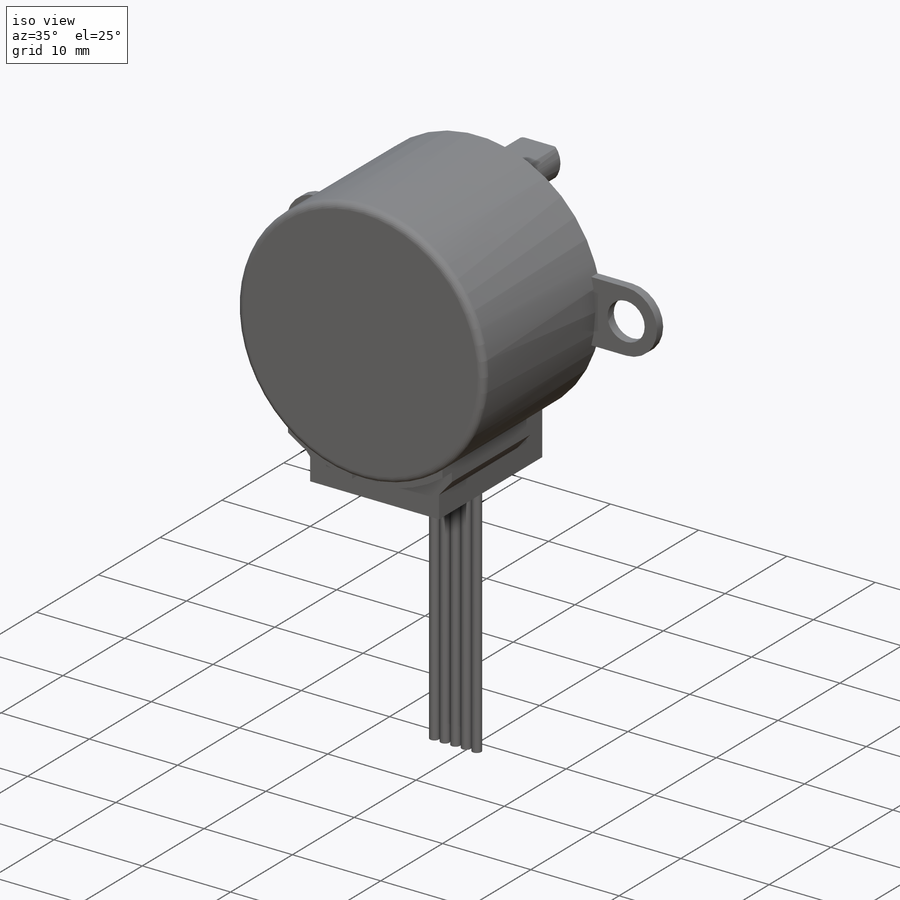
[diagram: iso view]
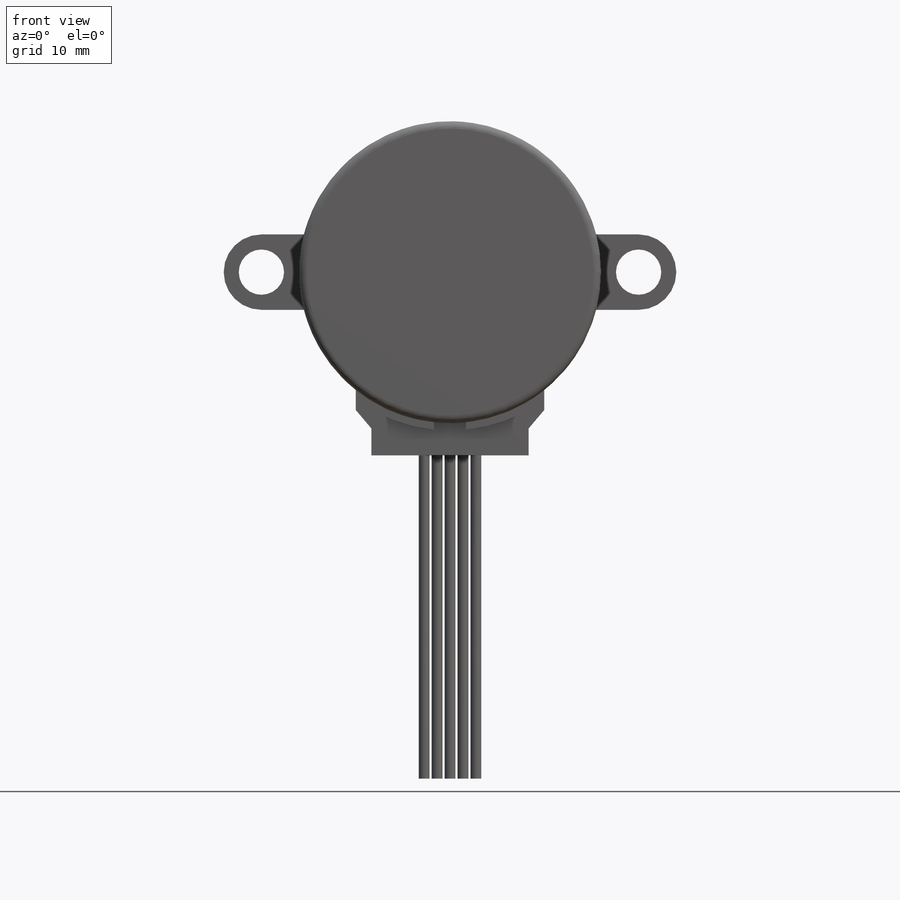
[diagram: front view]
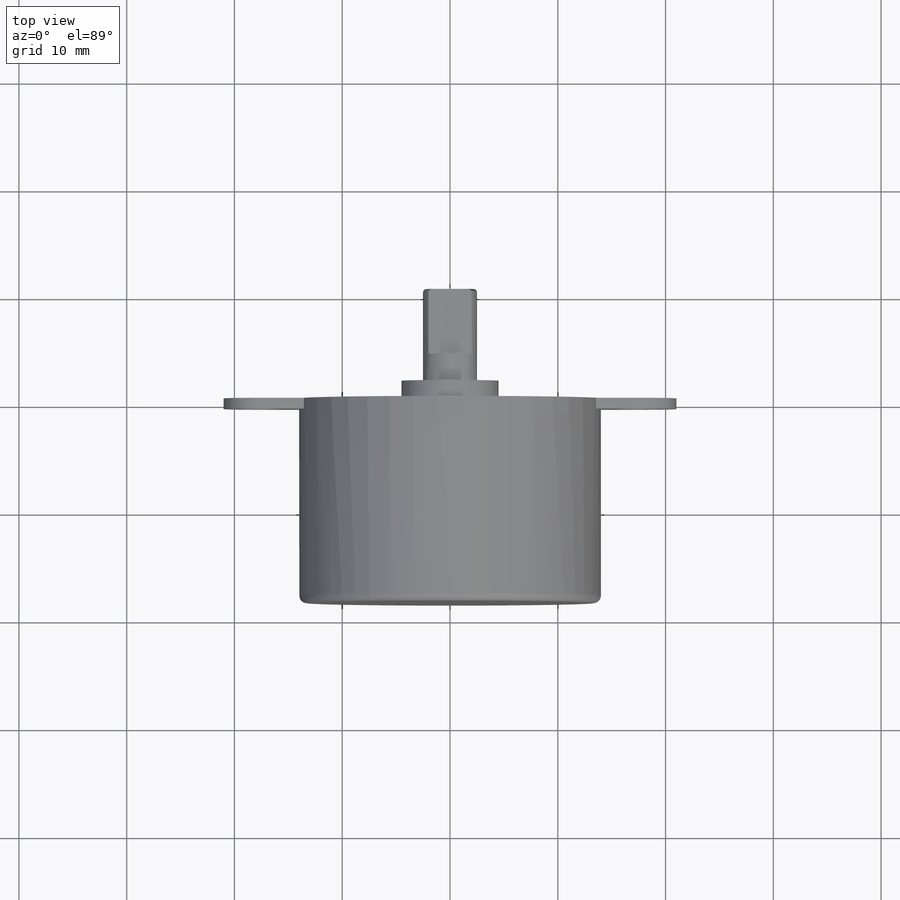
[diagram: top view]
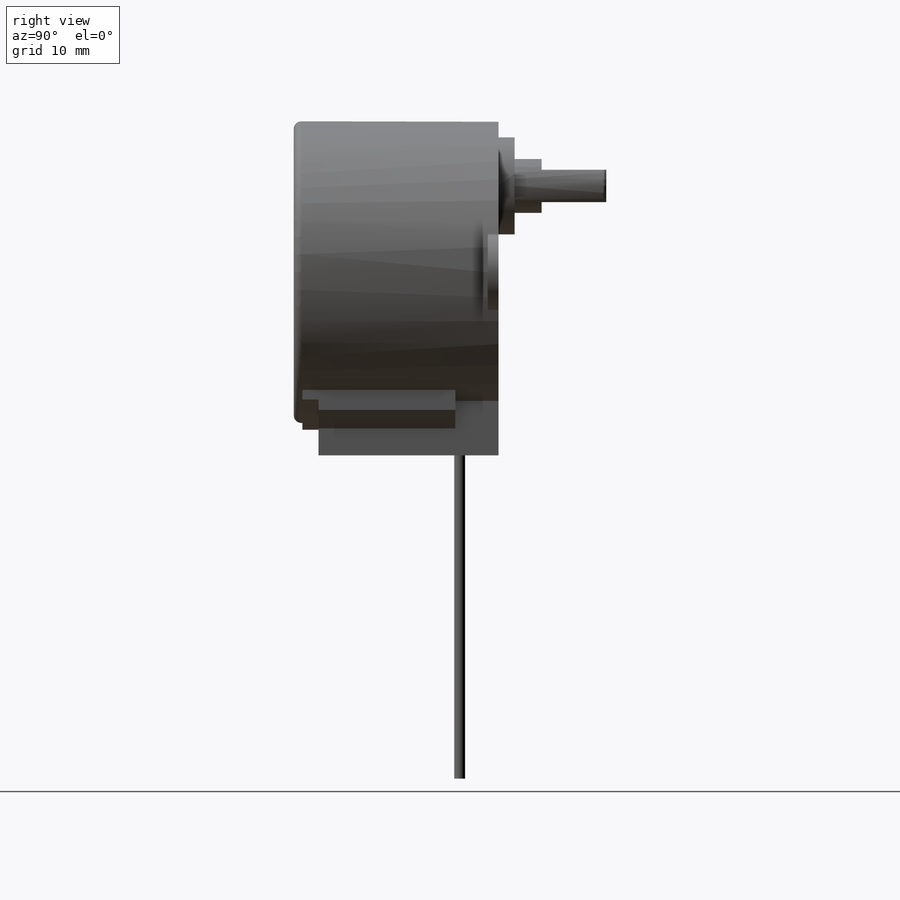
[diagram: right view]
SOLIDWORKS PART (.sldprt)
format: sldprt  version: not decoded by parser v0  size: 380,928 bytes
history: native  units: mm
features: sketch x11, extrude x9, plane x3, fillet x2, cut_extrude x2, material x1 (+10 scaffold rows collapsed)
feature tree (38):
  scaffold x10  (default folders/planes/origin — collapsed)
  material  "Material <not specified>"
  plane  "Ön Düzlem"
  plane  "Üst Düzlem"
  plane  "Sağ Düzlem"
  sketch  "Sketch1"  dims[D1=28.0mm]
  extrude  "Boss-Extrude1"  Depth=19mm
  sketch  "Sketch2"  dims[D1=8.0mm]
  extrude  "Boss-Extrude2"  Depth=1.5mm
  sketch  "Sketch3"  dims[D1=~3.026506mm]
  extrude  "Boss-Extrude3"  Depth=2.5mm
  sketch  "Sketch5"  dims[D1=3.0mm D2=1.5mm]
  extrude  "Boss-Extrude5"  Depth=6mm
  fillet  "Fillet1"  Radius=0.3mm
  fillet  "Fillet2"  Radius=0.7mm
  sketch  "Sketch6"  dims[c1.D1=4.2mm c1.D2=7.0mm c2.D1=35.0mm c2.D2=17.5mm]
  extrude  "Boss-Extrude6"  Depth=1mm
  sketch  "Sketch7"  dims[D1=17.0mm D2=14.6mm D3=7.3mm]
  extrude  "Boss-Extrude7"  Depth=16.7mm
  sketch  "Sketch8"  dims[D1=17.5mm D2=8.75mm D3=2.5mm]
  extrude  "Boss-Extrude8"  Depth=12.7mm
  sketch  "Sketch9"
  cut_extrude  "Cut-Extrude1"  Depth=0.3mm
  sketch  "Sketch10"  dims[D1=3.0mm D2=1.5mm]
  extrude  "Boss-Extrude10"  Depth=1.5mm
  sketch  "Sketch11"  dims[D1=7.5mm D2=1.2mm D3=3.75mm D4=3.0mm]
  cut_extrude  "Cut-Extrude2"  Depth=2mm
  sketch  "Sketch12"  dims[D1=1.2mm D2=1.2mm]
  extrude  "Boss-Extrude11"  Depth=32mm
decode coverage: 23 of 24 modeling features carry decoded parameters
note: ~ marks probable driven/reference dimensions
note: suppression state not decoded; provenance and decode notes live in map.json
